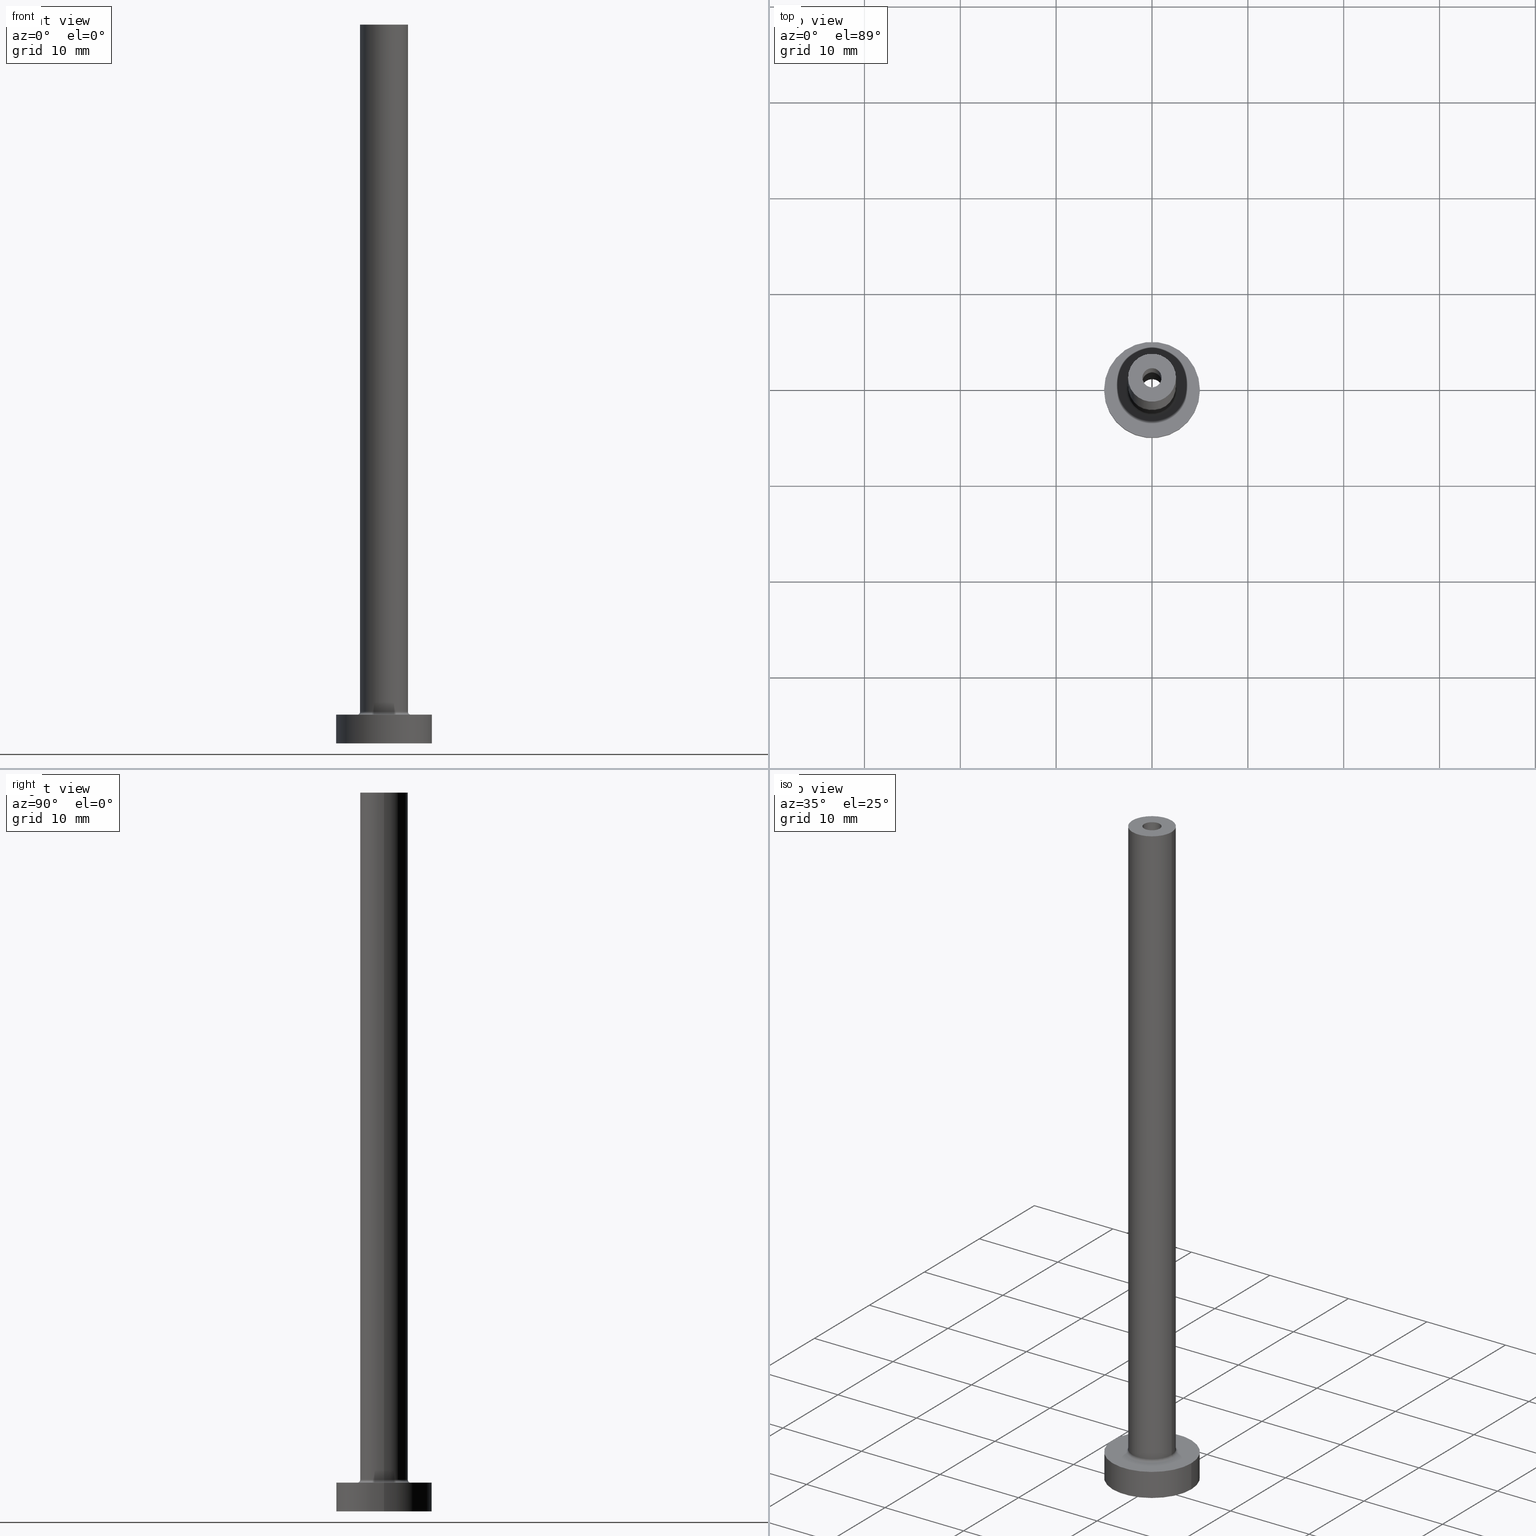
[diagram: canonical four-view strip — front | top / right | iso, engineering-drawing reading convention]
A machine part, canonical four-view strip (front | top / right | iso — engineering-drawing reading convention). The complete STEP part file that produces these views, byte-faithful:
ISO-10303-21;
HEADER;
FILE_DESCRIPTION (( 'STEP AP203' ),
    '1' );
FILE_NAME ('41a6.STEP',
    '2024-02-27T11:43:41',
    ( '' ),
    ( '' ),
    'SwSTEP 2.0',
    'SolidWorks 2019',
    '' );
FILE_SCHEMA (( 'CONFIG_CONTROL_DESIGN' ));
ENDSEC;

DATA;
#1 = CARTESIAN_POINT ( 'NONE',  ( 0.000000000000000000, 0.000000000000000000, 40.00000000000000711 ) ) ;
#2 = EDGE_CURVE ( 'NONE', #122, #406, #139, .T. ) ;
#3 = DIRECTION ( 'NONE',  ( 0.000000000000000000, 0.000000000000000000, -1.000000000000000000 ) ) ;
#4 = CARTESIAN_POINT ( 'NONE',  ( 0.000000000000000000, 0.000000000000000000, 3.000000000000000000 ) ) ;
#5 = PERSON_AND_ORGANIZATION ( #392, #262 ) ;
#6 = DIRECTION ( 'NONE',  ( 0.000000000000000000, 0.000000000000000000, 1.000000000000000000 ) ) ;
#7 = AXIS2_PLACEMENT_3D ( 'NONE', #326, #397, #112 ) ;
#8 = AXIS2_PLACEMENT_3D ( 'NONE', #276, #35, #387 ) ;
#9 =( NAMED_UNIT ( * ) SI_UNIT ( $, .STERADIAN. ) SOLID_ANGLE_UNIT ( ) );
#10 = EDGE_CURVE ( 'NONE', #302, #156, #314, .T. ) ;
#11 = CIRCLE ( 'NONE', #270, 1.149999999999999911 ) ;
#12 = DIRECTION ( 'NONE',  ( 0.000000000000000000, 0.000000000000000000, 1.000000000000000000 ) ) ;
#13 = CARTESIAN_POINT ( 'NONE',  ( 0.000000000000000000, 0.000000000000000000, 40.00000000000000711 ) ) ;
#14 = EDGE_LOOP ( 'NONE', ( #169, #26, #414, #412 ) ) ;
#15 = CC_DESIGN_PERSON_AND_ORGANIZATION_ASSIGNMENT ( #185, #118, ( #347 ) ) ;
#16 = APPROVAL_STATUS ( 'not_yet_approved' ) ;
#17 = MANIFOLD_SOLID_BREP ( 'Odebrat vysunut�m4', #339 ) ;
#18 = ORIENTED_EDGE ( 'NONE', *, *, #152, .T. ) ;
#19 = CARTESIAN_POINT ( 'NONE',  ( 2.799999999999999822, 0.000000000000000000, 3.299999999999997158 ) ) ;
#20 = AXIS2_PLACEMENT_3D ( 'NONE', #134, #29, #340 ) ;
#21 = DIRECTION ( 'NONE',  ( 1.000000000000000000, 0.000000000000000000, -0.000000000000000000 ) ) ;
#22 = EDGE_CURVE ( 'NONE', #388, #131, #11, .T. ) ;
#23 = CIRCLE ( 'NONE', #43, 1.000000000000000000 ) ;
#24 = ORIENTED_EDGE ( 'NONE', *, *, #178, .F. ) ;
#25 = DIRECTION ( 'NONE',  ( 1.000000000000000000, 0.000000000000000000, 0.000000000000000000 ) ) ;
#26 = ORIENTED_EDGE ( 'NONE', *, *, #178, .T. ) ;
#27 = DIRECTION ( 'NONE',  ( -0.000000000000000000, -0.000000000000000000, -1.000000000000000000 ) ) ;
#28 = ORIENTED_EDGE ( 'NONE', *, *, #418, .T. ) ;
#29 = DIRECTION ( 'NONE',  ( 0.000000000000000000, 0.000000000000000000, 1.000000000000000000 ) ) ;
#30 = CIRCLE ( 'NONE', #452, 1.149999999999999911 ) ;
#31 = DIRECTION ( 'NONE',  ( -1.000000000000000000, 0.000000000000000000, 0.000000000000000000 ) ) ;
#32 = ADVANCED_FACE ( 'NONE', ( #346 ), #278, .F. ) ;
#33 = FACE_OUTER_BOUND ( 'NONE', #267, .T. ) ;
#34 = LINE ( 'NONE', #384, #454 ) ;
#35 = DIRECTION ( 'NONE',  ( -0.000000000000000000, -0.000000000000000000, -1.000000000000000000 ) ) ;
#36 = VERTEX_POINT ( 'NONE', #423 ) ;
#37 = VERTEX_POINT ( 'NONE', #456 ) ;
#38 = LINE ( 'NONE', #176, #249 ) ;
#39 = DIRECTION ( 'NONE',  ( 1.000000000000000000, 0.000000000000000000, 0.000000000000000000 ) ) ;
#40 = CARTESIAN_POINT ( 'NONE',  ( 0.000000000000000000, 0.000000000000000000, 75.00000000000001421 ) ) ;
#41 = DIRECTION ( 'NONE',  ( -1.000000000000000000, 0.000000000000000000, 0.000000000000000000 ) ) ;
#42 = AXIS2_PLACEMENT_3D ( 'NONE', #342, #201, #25 ) ;
#43 = AXIS2_PLACEMENT_3D ( 'NONE', #146, #283, #207 ) ;
#44 = EDGE_CURVE ( 'NONE', #388, #441, #34, .T. ) ;
#45 = DIRECTION ( 'NONE',  ( 0.000000000000000000, 0.000000000000000000, 1.000000000000000000 ) ) ;
#46 = ADVANCED_FACE ( 'NONE', ( #67 ), #263, .F. ) ;
#47 = VECTOR ( 'NONE', #196, 1000.000000000000000 ) ;
#48 = SHAPE_DEFINITION_REPRESENTATION ( #91, #171 ) ;
#49 = CYLINDRICAL_SURFACE ( 'NONE', #88, 1.000000000000000000 ) ;
#50 = VERTEX_POINT ( 'NONE', #360 ) ;
#51 = CC_DESIGN_DATE_AND_TIME_ASSIGNMENT ( #182, #368, ( #347 ) ) ;
#52 = CARTESIAN_POINT ( 'NONE',  ( 2.500000000000000000, 3.061616997868383141E-16, 75.00000000000001421 ) ) ;
#53 = ORIENTED_EDGE ( 'NONE', *, *, #2, .T. ) ;
#54 = CIRCLE ( 'NONE', #115, 2.500000000000000000 ) ;
#55 = CARTESIAN_POINT ( 'NONE',  ( 1.000000000000000000, 1.224646799147353207E-16, 75.00000000000001421 ) ) ;
#56 = ORIENTED_EDGE ( 'NONE', *, *, #343, .F. ) ;
#57 = PLANE ( 'NONE',  #128 ) ;
#58 = ORIENTED_EDGE ( 'NONE', *, *, #104, .F. ) ;
#59 = FACE_OUTER_BOUND ( 'NONE', #344, .T. ) ;
#60 = EDGE_CURVE ( 'NONE', #37, #36, #153, .T. ) ;
#61 = DIRECTION ( 'NONE',  ( 0.000000000000000000, 0.000000000000000000, 1.000000000000000000 ) ) ;
#62 = CARTESIAN_POINT ( 'NONE',  ( 0.000000000000000000, 0.000000000000000000, 75.00000000000001421 ) ) ;
#63 = AXIS2_PLACEMENT_3D ( 'NONE', #255, #264, #369 ) ;
#64 = ORIENTED_EDGE ( 'NONE', *, *, #245, .F. ) ;
#65 = AXIS2_PLACEMENT_3D ( 'NONE', #413, #308, #455 ) ;
#66 = APPROVAL_STATUS ( 'not_yet_approved' ) ;
#67 = FACE_OUTER_BOUND ( 'NONE', #247, .T. ) ;
#68 = PRODUCT_DEFINITION ( 'NEZN�M�', '', #86, #277 ) ;
#69 = LINE ( 'NONE', #211, #362 ) ;
#70 = ORIENTED_EDGE ( 'NONE', *, *, #343, .T. ) ;
#71 = DIRECTION ( 'NONE',  ( 1.000000000000000000, 0.000000000000000000, 0.000000000000000000 ) ) ;
#72 = CARTESIAN_POINT ( 'NONE',  ( 0.000000000000000000, 0.000000000000000000, 0.000000000000000000 ) ) ;
#73 = CIRCLE ( 'NONE', #200, 5.000000000000000000 ) ;
#74 = LOCAL_TIME ( 12, 43, 41.00000000000000000, #332 ) ;
#75 = DIRECTION ( 'NONE',  ( -0.000000000000000000, -0.000000000000000000, -1.000000000000000000 ) ) ;
#76 = CARTESIAN_POINT ( 'NONE',  ( 0.000000000000000000, 0.000000000000000000, 75.00000000000001421 ) ) ;
#77 = CARTESIAN_POINT ( 'NONE',  ( 0.000000000000000000, 0.000000000000000000, 3.000000000000000000 ) ) ;
#78 = EDGE_CURVE ( 'NONE', #404, #349, #330, .T. ) ;
#79 = CARTESIAN_POINT ( 'NONE',  ( -1.149999999999999911, 0.000000000000000000, 0.000000000000000000 ) ) ;
#80 = CIRCLE ( 'NONE', #20, 2.500000000000000000 ) ;
#81 = CC_DESIGN_SECURITY_CLASSIFICATION ( #347, ( #86 ) ) ;
#82 = COORDINATED_UNIVERSAL_TIME_OFFSET ( 1, 0, .AHEAD. ) ;
#83 = ADVANCED_FACE ( 'NONE', ( #250 ), #49, .F. ) ;
#84 = APPLICATION_CONTEXT ( 'configuration controlled 3d designs of mechanical parts and assemblies' ) ;
#85 = APPROVAL_ROLE ( '' ) ;
#86 = PRODUCT_DEFINITION_FORMATION_WITH_SPECIFIED_SOURCE ( 'LIBOVOLN�', '', #372, .NOT_KNOWN. ) ;
#87 = LINE ( 'NONE', #224, #375 ) ;
#88 = AXIS2_PLACEMENT_3D ( 'NONE', #358, #179, #177 ) ;
#89 = ORIENTED_EDGE ( 'NONE', *, *, #227, .F. ) ;
#90 = PLANE ( 'NONE',  #355 ) ;
#91 = PRODUCT_DEFINITION_SHAPE ( 'NONE', 'NONE',  #68 ) ;
#92 = VERTEX_POINT ( 'NONE', #317 ) ;
#93 = CARTESIAN_POINT ( 'NONE',  ( 0.000000000000000000, 0.000000000000000000, 75.00000000000001421 ) ) ;
#94 = ORIENTED_EDGE ( 'NONE', *, *, #152, .F. ) ;
#95 = LINE ( 'NONE', #55, #366 ) ;
#96 =( GEOMETRIC_REPRESENTATION_CONTEXT ( 3 ) GLOBAL_UNCERTAINTY_ASSIGNED_CONTEXT ( ( #141 ) ) GLOBAL_UNIT_ASSIGNED_CONTEXT ( ( #318, #394, #9 ) ) REPRESENTATION_CONTEXT ( 'NONE', 'WORKASPACE' ) );
#97 = ORIENTED_EDGE ( 'NONE', *, *, #440, .T. ) ;
#98 = AXIS2_PLACEMENT_3D ( 'NONE', #307, #461, #31 ) ;
#99 = CARTESIAN_POINT ( 'NONE',  ( 0.000000000000000000, 0.000000000000000000, 43.25269119345811930 ) ) ;
#100 = ORIENTED_EDGE ( 'NONE', *, *, #2, .F. ) ;
#101 = DIRECTION ( 'NONE',  ( 1.000000000000000000, 0.000000000000000000, -0.000000000000000000 ) ) ;
#102 = ORIENTED_EDGE ( 'NONE', *, *, #195, .F. ) ;
#103 = ORIENTED_EDGE ( 'NONE', *, *, #377, .T. ) ;
#104 = EDGE_CURVE ( 'NONE', #131, #388, #444, .T. ) ;
#105 = MECHANICAL_CONTEXT ( 'NONE', #434, 'mechanical' ) ;
#106 = ORIENTED_EDGE ( 'NONE', *, *, #60, .T. ) ;
#107 = PERSON_AND_ORGANIZATION_ROLE ( 'creator' ) ;
#108 = ORIENTED_EDGE ( 'NONE', *, *, #311, .T. ) ;
#109 = PERSON_AND_ORGANIZATION ( #392, #262 ) ;
#110 = DIRECTION ( 'NONE',  ( 0.000000000000000000, 0.000000000000000000, 1.000000000000000000 ) ) ;
#111 = ADVANCED_FACE ( 'NONE', ( #285 ), #324, .T. ) ;
#112 = DIRECTION ( 'NONE',  ( 1.000000000000000000, 0.000000000000000000, 0.000000000000000000 ) ) ;
#113 = APPROVAL_DATE_TIME ( #254, #209 ) ;
#114 = DIRECTION ( 'NONE',  ( 1.000000000000000000, 0.000000000000000000, 0.000000000000000000 ) ) ;
#115 = AXIS2_PLACEMENT_3D ( 'NONE', #290, #433, #181 ) ;
#116 = EDGE_CURVE ( 'NONE', #293, #416, #73, .T. ) ;
#117 = PERSON_AND_ORGANIZATION ( #392, #262 ) ;
#118 = PERSON_AND_ORGANIZATION_ROLE ( 'classification_officer' ) ;
#119 = EDGE_LOOP ( 'NONE', ( #197, #295, #425, #443 ) ) ;
#120 = DIRECTION ( 'NONE',  ( 0.000000000000000000, 0.000000000000000000, -1.000000000000000000 ) ) ;
#121 = CIRCLE ( 'NONE', #241, 2.799999999999999822 ) ;
#122 = VERTEX_POINT ( 'NONE', #282 ) ;
#123 = DIRECTION ( 'NONE',  ( 1.000000000000000000, 0.000000000000000000, -0.000000000000000000 ) ) ;
#124 = ORIENTED_EDGE ( 'NONE', *, *, #458, .F. ) ;
#125 = PLANE ( 'NONE',  #162 ) ;
#126 = EDGE_LOOP ( 'NONE', ( #244, #299 ) ) ;
#127 = CIRCLE ( 'NONE', #436, 5.000000000000000000 ) ;
#128 = AXIS2_PLACEMENT_3D ( 'NONE', #62, #445, #123 ) ;
#129 = CYLINDRICAL_SURFACE ( 'NONE', #229, 5.000000000000000000 ) ;
#130 = APPROVAL_PERSON_ORGANIZATION ( #109, #288, #204 ) ;
#131 = VERTEX_POINT ( 'NONE', #184 ) ;
#132 = DIRECTION ( 'NONE',  ( 0.000000000000000000, 0.000000000000000000, -1.000000000000000000 ) ) ;
#133 = ORIENTED_EDGE ( 'NONE', *, *, #10, .F. ) ;
#134 = CARTESIAN_POINT ( 'NONE',  ( 0.000000000000000000, 0.000000000000000000, 75.00000000000001421 ) ) ;
#135 = EDGE_CURVE ( 'NONE', #136, #50, #361, .T. ) ;
#136 = VERTEX_POINT ( 'NONE', #319 ) ;
#137 = FACE_OUTER_BOUND ( 'NONE', #14, .T. ) ;
#138 = DIRECTION ( 'NONE',  ( -0.000000000000000000, -0.000000000000000000, -1.000000000000000000 ) ) ;
#139 = CIRCLE ( 'NONE', #402, 1.000000000000000000 ) ;
#140 = CYLINDRICAL_SURFACE ( 'NONE', #8, 5.000000000000000000 ) ;
#141 = UNCERTAINTY_MEASURE_WITH_UNIT (LENGTH_MEASURE( 1.000000000000000082E-05 ), #318, 'distance_accuracy_value', 'NONE');
#142 = ORIENTED_EDGE ( 'NONE', *, *, #458, .T. ) ;
#143 = DIRECTION ( 'NONE',  ( 1.000000000000000000, 0.000000000000000000, 0.000000000000000000 ) ) ;
#144 = DIRECTION ( 'NONE',  ( 1.000000000000000000, 0.000000000000000000, 0.000000000000000000 ) ) ;
#145 = EDGE_CURVE ( 'NONE', #50, #136, #54, .T. ) ;
#146 = CARTESIAN_POINT ( 'NONE',  ( 0.000000000000000000, 0.000000000000000000, 75.00000000000001421 ) ) ;
#147 = LINE ( 'NONE', #194, #47 ) ;
#148 = CC_DESIGN_APPROVAL ( #209, ( #347 ) ) ;
#149 = APPROVAL_STATUS ( 'not_yet_approved' ) ;
#150 = FACE_OUTER_BOUND ( 'NONE', #188, .T. ) ;
#151 = DIRECTION ( 'NONE',  ( 1.000000000000000000, 0.000000000000000000, 0.000000000000000000 ) ) ;
#152 = EDGE_CURVE ( 'NONE', #165, #92, #411, .T. ) ;
#153 = CIRCLE ( 'NONE', #286, 1.000000000000000000 ) ;
#154 = ORIENTED_EDGE ( 'NONE', *, *, #426, .T. ) ;
#155 = PERSON_AND_ORGANIZATION_ROLE ( 'creator' ) ;
#156 = VERTEX_POINT ( 'NONE', #257 ) ;
#157 = FACE_BOUND ( 'NONE', #126, .T. ) ;
#158 = ORIENTED_EDGE ( 'NONE', *, *, #104, .T. ) ;
#159 = VECTOR ( 'NONE', #27, 1000.000000000000000 ) ;
#160 = APPROVAL_PERSON_ORGANIZATION ( #117, #265, #190 ) ;
#161 = FACE_BOUND ( 'NONE', #167, .T. ) ;
#162 = AXIS2_PLACEMENT_3D ( 'NONE', #268, #336, #21 ) ;
#163 = ORIENTED_EDGE ( 'NONE', *, *, #116, .T. ) ;
#164 = DIRECTION ( 'NONE',  ( 0.000000000000000000, 0.000000000000000000, 1.000000000000000000 ) ) ;
#165 = VERTEX_POINT ( 'NONE', #401 ) ;
#166 = CARTESIAN_POINT ( 'NONE',  ( 2.799999999999999822, 0.000000000000000000, 2.999999999999998668 ) ) ;
#167 = EDGE_LOOP ( 'NONE', ( #370, #175 ) ) ;
#168 = DIRECTION ( 'NONE',  ( 1.000000000000000000, 0.000000000000000000, 0.000000000000000000 ) ) ;
#169 = ORIENTED_EDGE ( 'NONE', *, *, #359, .F. ) ;
#170 = DIRECTION ( 'NONE',  ( 0.000000000000000000, 0.000000000000000000, -1.000000000000000000 ) ) ;
#171 = ADVANCED_BREP_SHAPE_REPRESENTATION ( '41a6', ( #17, #298 ), #96 ) ;
#172 = ORIENTED_EDGE ( 'NONE', *, *, #377, .F. ) ;
#173 = EDGE_LOOP ( 'NONE', ( #94, #89 ) ) ;
#174 = DIRECTION ( 'NONE',  ( -0.000000000000000000, -0.000000000000000000, -1.000000000000000000 ) ) ;
#175 = ORIENTED_EDGE ( 'NONE', *, *, #391, .F. ) ;
#176 = CARTESIAN_POINT ( 'NONE',  ( -1.000000000000000000, 0.000000000000000000, 75.00000000000001421 ) ) ;
#177 = DIRECTION ( 'NONE',  ( -1.000000000000000000, 0.000000000000000000, 0.000000000000000000 ) ) ;
#178 = EDGE_CURVE ( 'NONE', #416, #92, #87, .T. ) ;
#179 = DIRECTION ( 'NONE',  ( 0.000000000000000000, 0.000000000000000000, -1.000000000000000000 ) ) ;
#180 = DIRECTION ( 'NONE',  ( -0.000000000000000000, -0.000000000000000000, -1.000000000000000000 ) ) ;
#181 = DIRECTION ( 'NONE',  ( 1.000000000000000000, 0.000000000000000000, 0.000000000000000000 ) ) ;
#182 = DATE_AND_TIME ( #365, #313 ) ;
#183 = ADVANCED_FACE ( 'NONE', ( #150 ), #451, .F. ) ;
#184 = CARTESIAN_POINT ( 'NONE',  ( -1.149999999999999911, 0.000000000000000000, 40.00000000000000711 ) ) ;
#185 = PERSON_AND_ORGANIZATION ( #392, #262 ) ;
#186 = LOCAL_TIME ( 12, 43, 41.00000000000000000, #218 ) ;
#187 = DATE_AND_TIME ( #258, #230 ) ;
#188 = EDGE_LOOP ( 'NONE', ( #172, #271, #222, #439 ) ) ;
#189 = PRODUCT_RELATED_PRODUCT_CATEGORY ( 'detail', '', ( #372 ) ) ;
#190 = APPROVAL_ROLE ( '' ) ;
#191 = DIRECTION ( 'NONE',  ( 1.000000000000000000, 0.000000000000000000, 0.000000000000000000 ) ) ;
#192 = DIRECTION ( 'NONE',  ( 1.000000000000000000, 0.000000000000000000, 0.000000000000000000 ) ) ;
#193 = VERTEX_POINT ( 'NONE', #79 ) ;
#194 = CARTESIAN_POINT ( 'NONE',  ( -1.149999999999999911, 0.000000000000000000, 43.25269119345811930 ) ) ;
#195 = EDGE_CURVE ( 'NONE', #136, #302, #291, .T. ) ;
#196 = DIRECTION ( 'NONE',  ( 0.000000000000000000, 0.000000000000000000, -1.000000000000000000 ) ) ;
#197 = ORIENTED_EDGE ( 'NONE', *, *, #44, .F. ) ;
#198 = LINE ( 'NONE', #225, #159 ) ;
#199 = ORIENTED_EDGE ( 'NONE', *, *, #311, .F. ) ;
#200 = AXIS2_PLACEMENT_3D ( 'NONE', #4, #333, #114 ) ;
#201 = DIRECTION ( 'NONE',  ( 0.000000000000000000, 0.000000000000000000, 1.000000000000000000 ) ) ;
#202 = DIRECTION ( 'NONE',  ( 1.000000000000000000, 0.000000000000000000, 0.000000000000000000 ) ) ;
#203 = CC_DESIGN_PERSON_AND_ORGANIZATION_ASSIGNMENT ( #219, #155, ( #86 ) ) ;
#204 = APPROVAL_ROLE ( '' ) ;
#205 = ORIENTED_EDGE ( 'NONE', *, *, #145, .F. ) ;
#206 = ORIENTED_EDGE ( 'NONE', *, *, #320, .F. ) ;
#207 = DIRECTION ( 'NONE',  ( 1.000000000000000000, 0.000000000000000000, 0.000000000000000000 ) ) ;
#208 = VECTOR ( 'NONE', #174, 1000.000000000000000 ) ;
#209 = APPROVAL ( #149, 'NEUR�EN�' ) ;
#210 = CARTESIAN_POINT ( 'NONE',  ( 0.000000000000000000, 0.000000000000000000, 3.299999999999997158 ) ) ;
#211 = CARTESIAN_POINT ( 'NONE',  ( 2.500000000000000000, 3.061616997868383141E-16, 75.00000000000001421 ) ) ;
#212 = DIRECTION ( 'NONE',  ( 1.000000000000000000, 0.000000000000000000, 0.000000000000000000 ) ) ;
#213 = DIRECTION ( 'NONE',  ( -0.000000000000000000, -0.000000000000000000, -1.000000000000000000 ) ) ;
#214 = DIRECTION ( 'NONE',  ( 1.000000000000000000, 0.000000000000000000, -0.000000000000000000 ) ) ;
#215 = CIRCLE ( 'NONE', #42, 1.000000000000000000 ) ;
#216 = DIRECTION ( 'NONE',  ( 1.000000000000000000, 0.000000000000000000, 0.000000000000000000 ) ) ;
#217 = CIRCLE ( 'NONE', #240, 1.149999999999999911 ) ;
#218 = COORDINATED_UNIVERSAL_TIME_OFFSET ( 1, 0, .AHEAD. ) ;
#219 = PERSON_AND_ORGANIZATION ( #392, #262 ) ;
#220 = ADVANCED_FACE ( 'NONE', ( #157, #395 ), #296, .T. ) ;
#221 = CIRCLE ( 'NONE', #421, 0.2999999999999999334 ) ;
#222 = ORIENTED_EDGE ( 'NONE', *, *, #195, .T. ) ;
#223 = AXIS2_PLACEMENT_3D ( 'NONE', #13, #45, #191 ) ;
#224 = CARTESIAN_POINT ( 'NONE',  ( 5.000000000000000000, 6.123233995736766282E-16, 3.000000000000000000 ) ) ;
#225 = CARTESIAN_POINT ( 'NONE',  ( -2.500000000000000000, 0.000000000000000000, 75.00000000000001421 ) ) ;
#226 = ORIENTED_EDGE ( 'NONE', *, *, #391, .T. ) ;
#227 = EDGE_CURVE ( 'NONE', #92, #165, #127, .T. ) ;
#228 = DIRECTION ( 'NONE',  ( -1.000000000000000000, 0.000000000000000000, 0.000000000000000000 ) ) ;
#229 = AXIS2_PLACEMENT_3D ( 'NONE', #306, #266, #272 ) ;
#230 = LOCAL_TIME ( 12, 43, 41.00000000000000000, #399 ) ;
#231 = DIRECTION ( 'NONE',  ( 1.224646799147353207E-16, 1.000000000000000000, -0.000000000000000000 ) ) ;
#232 = ORIENTED_EDGE ( 'NONE', *, *, #78, .T. ) ;
#233 = FACE_BOUND ( 'NONE', #354, .T. ) ;
#234 = DIRECTION ( 'NONE',  ( 0.000000000000000000, 0.000000000000000000, 1.000000000000000000 ) ) ;
#235 = FACE_BOUND ( 'NONE', #312, .T. ) ;
#236 = CC_DESIGN_PERSON_AND_ORGANIZATION_ASSIGNMENT ( #5, #281, ( #372 ) ) ;
#237 = EDGE_LOOP ( 'NONE', ( #58, #275 ) ) ;
#238 = AXIS2_PLACEMENT_3D ( 'NONE', #77, #428, #214 ) ;
#239 = DIRECTION ( 'NONE',  ( 0.000000000000000000, 0.000000000000000000, 1.000000000000000000 ) ) ;
#240 = AXIS2_PLACEMENT_3D ( 'NONE', #385, #75, #71 ) ;
#241 = AXIS2_PLACEMENT_3D ( 'NONE', #379, #301, #168 ) ;
#242 = DIRECTION ( 'NONE',  ( 1.000000000000000000, 0.000000000000000000, 0.000000000000000000 ) ) ;
#243 = CARTESIAN_POINT ( 'NONE',  ( -2.500000000000000000, 0.000000000000000000, 75.00000000000001421 ) ) ;
#244 = ORIENTED_EDGE ( 'NONE', *, *, #10, .T. ) ;
#245 = EDGE_CURVE ( 'NONE', #131, #193, #147, .T. ) ;
#246 = CARTESIAN_POINT ( 'NONE',  ( 1.149999999999999911, 1.408343819019456028E-16, 40.00000000000000711 ) ) ;
#247 = EDGE_LOOP ( 'NONE', ( #205, #103, #133, #102 ) ) ;
#248 = CARTESIAN_POINT ( 'NONE',  ( -5.000000000000000000, 0.000000000000000000, 3.000000000000000000 ) ) ;
#249 = VECTOR ( 'NONE', #3, 1000.000000000000000 ) ;
#250 = FACE_OUTER_BOUND ( 'NONE', #386, .T. ) ;
#251 = AXIS2_PLACEMENT_3D ( 'NONE', #76, #363, #216 ) ;
#252 = CARTESIAN_POINT ( 'NONE',  ( 5.000000000000000000, 6.123233995736766282E-16, 3.000000000000000000 ) ) ;
#253 = CARTESIAN_POINT ( 'NONE',  ( 0.000000000000000000, 0.000000000000000000, 0.000000000000000000 ) ) ;
#254 = DATE_AND_TIME ( #396, #186 ) ;
#255 = CARTESIAN_POINT ( 'NONE',  ( 0.000000000000000000, 0.000000000000000000, 3.299999999999997158 ) ) ;
#256 = PERSON_AND_ORGANIZATION ( #392, #262 ) ;
#257 = CARTESIAN_POINT ( 'NONE',  ( -2.799999999999999822, 3.429011037612589276E-16, 2.999999999999998668 ) ) ;
#258 = CALENDAR_DATE ( 2024, 27, 2 ) ;
#259 = ADVANCED_FACE ( 'NONE', ( #376 ), #129, .T. ) ;
#260 = ORIENTED_EDGE ( 'NONE', *, *, #78, .F. ) ;
#261 = AXIS2_PLACEMENT_3D ( 'NONE', #40, #432, #41 ) ;
#262 = ORGANIZATION ( 'NEUR�EN�', 'NEUR�EN�', '' ) ;
#263 = TOROIDAL_SURFACE ( 'NONE', #357, 2.799999999999999822, 0.2999999999999999889 ) ;
#264 = DIRECTION ( 'NONE',  ( 0.000000000000000000, 0.000000000000000000, 1.000000000000000000 ) ) ;
#265 = APPROVAL ( #16, 'NEUR�EN�' ) ;
#266 = DIRECTION ( 'NONE',  ( -0.000000000000000000, -0.000000000000000000, -1.000000000000000000 ) ) ;
#267 = EDGE_LOOP ( 'NONE', ( #106, #341, #100, #124 ) ) ;
#268 = CARTESIAN_POINT ( 'NONE',  ( 0.000000000000000000, 0.000000000000000000, 40.00000000000000711 ) ) ;
#269 = DIRECTION ( 'NONE',  ( -1.000000000000000000, 1.224646799147353207E-16, 0.000000000000000000 ) ) ;
#270 = AXIS2_PLACEMENT_3D ( 'NONE', #1, #61, #202 ) ;
#271 = ORIENTED_EDGE ( 'NONE', *, *, #135, .F. ) ;
#272 = DIRECTION ( 'NONE',  ( -1.000000000000000000, 0.000000000000000000, 0.000000000000000000 ) ) ;
#273 = ADVANCED_FACE ( 'NONE', ( #161, #59 ), #57, .T. ) ;
#274 = DIRECTION ( 'NONE',  ( 0.000000000000000000, 0.000000000000000000, -1.000000000000000000 ) ) ;
#275 = ORIENTED_EDGE ( 'NONE', *, *, #22, .F. ) ;
#276 = CARTESIAN_POINT ( 'NONE',  ( 0.000000000000000000, 0.000000000000000000, 3.000000000000000000 ) ) ;
#277 = DESIGN_CONTEXT ( 'detailed design', #84, 'design' ) ;
#278 = CYLINDRICAL_SURFACE ( 'NONE', #98, 1.149999999999999911 ) ;
#279 = APPROVAL_DATE_TIME ( #460, #288 ) ;
#280 = ORIENTED_EDGE ( 'NONE', *, *, #116, .F. ) ;
#281 = PERSON_AND_ORGANIZATION_ROLE ( 'design_owner' ) ;
#282 = CARTESIAN_POINT ( 'NONE',  ( -1.000000000000000000, 0.000000000000000000, 40.00000000000000711 ) ) ;
#283 = DIRECTION ( 'NONE',  ( 0.000000000000000000, 0.000000000000000000, 1.000000000000000000 ) ) ;
#284 = CC_DESIGN_APPROVAL ( #288, ( #68 ) ) ;
#285 = FACE_OUTER_BOUND ( 'NONE', #459, .T. ) ;
#286 = AXIS2_PLACEMENT_3D ( 'NONE', #430, #12, #151 ) ;
#287 = DATE_AND_TIME ( #438, #74 ) ;
#288 = APPROVAL ( #66, 'NEUR�EN�' ) ;
#289 = DIRECTION ( 'NONE',  ( -0.000000000000000000, -0.000000000000000000, -1.000000000000000000 ) ) ;
#290 = CARTESIAN_POINT ( 'NONE',  ( 0.000000000000000000, 0.000000000000000000, 3.299999999999997158 ) ) ;
#291 = CIRCLE ( 'NONE', #322, 0.2999999999999999334 ) ;
#292 = ADVANCED_FACE ( 'NONE', ( #233, #408 ), #90, .F. ) ;
#293 = VERTEX_POINT ( 'NONE', #457 ) ;
#294 = PERSON_AND_ORGANIZATION_ROLE ( 'design_supplier' ) ;
#295 = ORIENTED_EDGE ( 'NONE', *, *, #22, .T. ) ;
#296 = PLANE ( 'NONE',  #238 ) ;
#297 = CC_DESIGN_PERSON_AND_ORGANIZATION_ASSIGNMENT ( #256, #294, ( #86 ) ) ;
#298 = AXIS2_PLACEMENT_3D ( 'NONE', #353, #239, #143 ) ;
#299 = ORIENTED_EDGE ( 'NONE', *, *, #364, .T. ) ;
#300 = CYLINDRICAL_SURFACE ( 'NONE', #65, 2.500000000000000000 ) ;
#301 = DIRECTION ( 'NONE',  ( -0.000000000000000000, -0.000000000000000000, -1.000000000000000000 ) ) ;
#302 = VERTEX_POINT ( 'NONE', #166 ) ;
#303 = FACE_OUTER_BOUND ( 'NONE', #329, .T. ) ;
#304 = ORIENTED_EDGE ( 'NONE', *, *, #359, .T. ) ;
#305 = EDGE_CURVE ( 'NONE', #36, #406, #95, .T. ) ;
#306 = CARTESIAN_POINT ( 'NONE',  ( 0.000000000000000000, 0.000000000000000000, 3.000000000000000000 ) ) ;
#307 = CARTESIAN_POINT ( 'NONE',  ( 0.000000000000000000, 0.000000000000000000, 43.25269119345811930 ) ) ;
#308 = DIRECTION ( 'NONE',  ( -0.000000000000000000, -0.000000000000000000, -1.000000000000000000 ) ) ;
#309 = CARTESIAN_POINT ( 'NONE',  ( 0.000000000000000000, 0.000000000000000000, 3.000000000000000000 ) ) ;
#310 = CALENDAR_DATE ( 2024, 27, 2 ) ;
#311 = EDGE_CURVE ( 'NONE', #406, #122, #215, .T. ) ;
#312 = EDGE_LOOP ( 'NONE', ( #53, #108 ) ) ;
#313 = LOCAL_TIME ( 12, 43, 41.00000000000000000, #82 ) ;
#314 = CIRCLE ( 'NONE', #325, 2.799999999999999822 ) ;
#315 = CARTESIAN_POINT ( 'NONE',  ( 0.000000000000000000, 0.000000000000000000, 40.00000000000000711 ) ) ;
#316 = LINE ( 'NONE', #248, #208 ) ;
#317 = CARTESIAN_POINT ( 'NONE',  ( 5.000000000000000000, 6.123233995736766282E-16, 0.000000000000000000 ) ) ;
#318 =( LENGTH_UNIT ( ) NAMED_UNIT ( * ) SI_UNIT ( .MILLI., .METRE. ) );
#319 = CARTESIAN_POINT ( 'NONE',  ( 2.500000000000000000, 3.061616997868383141E-16, 3.299999999999997158 ) ) ;
#320 = EDGE_CURVE ( 'NONE', #404, #50, #198, .T. ) ;
#321 = CARTESIAN_POINT ( 'NONE',  ( 1.149999999999999911, 1.408343819019456028E-16, 0.000000000000000000 ) ) ;
#322 = AXIS2_PLACEMENT_3D ( 'NONE', #19, #442, #120 ) ;
#323 = AXIS2_PLACEMENT_3D ( 'NONE', #407, #164, #192 ) ;
#324 = CYLINDRICAL_SURFACE ( 'NONE', #261, 2.500000000000000000 ) ;
#325 = AXIS2_PLACEMENT_3D ( 'NONE', #309, #138, #242 ) ;
#326 = CARTESIAN_POINT ( 'NONE',  ( 0.000000000000000000, 0.000000000000000000, 3.299999999999997158 ) ) ;
#327 = ADVANCED_FACE ( 'NONE', ( #33 ), #373, .F. ) ;
#328 = AXIS2_PLACEMENT_3D ( 'NONE', #253, #6, #144 ) ;
#329 = EDGE_LOOP ( 'NONE', ( #158, #338, #97, #64 ) ) ;
#330 = CIRCLE ( 'NONE', #251, 2.500000000000000000 ) ;
#331 = SECURITY_CLASSIFICATION_LEVEL ( 'unclassified' ) ;
#332 = COORDINATED_UNIVERSAL_TIME_OFFSET ( 1, 0, .AHEAD. ) ;
#333 = DIRECTION ( 'NONE',  ( 0.000000000000000000, 0.000000000000000000, 1.000000000000000000 ) ) ;
#334 = ORIENTED_EDGE ( 'NONE', *, *, #145, .T. ) ;
#335 = ADVANCED_FACE ( 'NONE', ( #303 ), #345, .F. ) ;
#336 = DIRECTION ( 'NONE',  ( 0.000000000000000000, 0.000000000000000000, 1.000000000000000000 ) ) ;
#337 = CC_DESIGN_APPROVAL ( #265, ( #86 ) ) ;
#338 = ORIENTED_EDGE ( 'NONE', *, *, #44, .T. ) ;
#339 = CLOSED_SHELL ( 'NONE', ( #327, #335, #46, #350, #398, #259, #220, #292, #111, #273, #183, #32, #371, #83 ) ) ;
#340 = DIRECTION ( 'NONE',  ( 1.000000000000000000, 0.000000000000000000, 0.000000000000000000 ) ) ;
#341 = ORIENTED_EDGE ( 'NONE', *, *, #305, .T. ) ;
#342 = CARTESIAN_POINT ( 'NONE',  ( 0.000000000000000000, 0.000000000000000000, 40.00000000000000711 ) ) ;
#343 = EDGE_CURVE ( 'NONE', #349, #404, #80, .T. ) ;
#344 = EDGE_LOOP ( 'NONE', ( #232, #70 ) ) ;
#345 = CYLINDRICAL_SURFACE ( 'NONE', #429, 1.149999999999999911 ) ;
#346 = FACE_OUTER_BOUND ( 'NONE', #119, .T. ) ;
#347 = SECURITY_CLASSIFICATION ( '', '', #331 ) ;
#348 = DIRECTION ( 'NONE',  ( 0.000000000000000000, 0.000000000000000000, -1.000000000000000000 ) ) ;
#349 = VERTEX_POINT ( 'NONE', #52 ) ;
#350 = ADVANCED_FACE ( 'NONE', ( #374 ), #300, .T. ) ;
#351 = COORDINATED_UNIVERSAL_TIME_OFFSET ( 1, 0, .AHEAD. ) ;
#352 = EDGE_LOOP ( 'NONE', ( #24, #280, #28, #18 ) ) ;
#353 = CARTESIAN_POINT ( 'NONE',  ( 0.000000000000000000, 0.000000000000000000, 0.000000000000000000 ) ) ;
#354 = EDGE_LOOP ( 'NONE', ( #449, #378 ) ) ;
#355 = AXIS2_PLACEMENT_3D ( 'NONE', #415, #381, #101 ) ;
#356 = CARTESIAN_POINT ( 'NONE',  ( 0.000000000000000000, 0.000000000000000000, 0.000000000000000000 ) ) ;
#357 = AXIS2_PLACEMENT_3D ( 'NONE', #210, #110, #39 ) ;
#358 = CARTESIAN_POINT ( 'NONE',  ( 0.000000000000000000, 0.000000000000000000, 75.00000000000001421 ) ) ;
#359 = EDGE_CURVE ( 'NONE', #416, #293, #400, .T. ) ;
#360 = CARTESIAN_POINT ( 'NONE',  ( -2.500000000000000000, 0.000000000000000000, 3.299999999999997158 ) ) ;
#361 = CIRCLE ( 'NONE', #7, 2.500000000000000000 ) ;
#362 = VECTOR ( 'NONE', #180, 1000.000000000000000 ) ;
#363 = DIRECTION ( 'NONE',  ( 0.000000000000000000, 0.000000000000000000, 1.000000000000000000 ) ) ;
#364 = EDGE_CURVE ( 'NONE', #156, #302, #121, .T. ) ;
#365 = CALENDAR_DATE ( 2024, 27, 2 ) ;
#366 = VECTOR ( 'NONE', #348, 1000.000000000000000 ) ;
#367 = EDGE_LOOP ( 'NONE', ( #56, #154, #382, #206 ) ) ;
#368 = DATE_TIME_ROLE ( 'classification_date' ) ;
#369 = DIRECTION ( 'NONE',  ( 1.000000000000000000, 0.000000000000000000, 0.000000000000000000 ) ) ;
#370 = ORIENTED_EDGE ( 'NONE', *, *, #60, .F. ) ;
#371 = ADVANCED_FACE ( 'NONE', ( #235, #448 ), #125, .F. ) ;
#372 = PRODUCT ( '41a6', '41a6', '', ( #105 ) ) ;
#373 = CYLINDRICAL_SURFACE ( 'NONE', #420, 1.000000000000000000 ) ;
#374 = FACE_OUTER_BOUND ( 'NONE', #367, .T. ) ;
#375 = VECTOR ( 'NONE', #289, 1000.000000000000000 ) ;
#376 = FACE_OUTER_BOUND ( 'NONE', #352, .T. ) ;
#377 = EDGE_CURVE ( 'NONE', #50, #156, #221, .T. ) ;
#378 = ORIENTED_EDGE ( 'NONE', *, *, #440, .F. ) ;
#379 = CARTESIAN_POINT ( 'NONE',  ( 0.000000000000000000, 0.000000000000000000, 3.000000000000000000 ) ) ;
#380 = DIRECTION ( 'NONE',  ( 1.000000000000000000, 0.000000000000000000, 0.000000000000000000 ) ) ;
#381 = DIRECTION ( 'NONE',  ( 0.000000000000000000, 0.000000000000000000, 1.000000000000000000 ) ) ;
#382 = ORIENTED_EDGE ( 'NONE', *, *, #135, .T. ) ;
#383 = CC_DESIGN_PERSON_AND_ORGANIZATION_ASSIGNMENT ( #424, #107, ( #68 ) ) ;
#384 = CARTESIAN_POINT ( 'NONE',  ( 1.149999999999999911, 1.408343819019456028E-16, 43.25269119345811930 ) ) ;
#385 = CARTESIAN_POINT ( 'NONE',  ( 0.000000000000000000, 0.000000000000000000, 0.000000000000000000 ) ) ;
#386 = EDGE_LOOP ( 'NONE', ( #419, #226, #142, #199 ) ) ;
#387 = DIRECTION ( 'NONE',  ( -1.000000000000000000, 0.000000000000000000, 0.000000000000000000 ) ) ;
#388 = VERTEX_POINT ( 'NONE', #246 ) ;
#389 = LOCAL_TIME ( 12, 43, 41.00000000000000000, #351 ) ;
#390 = CARTESIAN_POINT ( 'NONE',  ( 1.000000000000000000, 1.224646799147353207E-16, 40.00000000000000711 ) ) ;
#391 = EDGE_CURVE ( 'NONE', #36, #37, #23, .T. ) ;
#392 = PERSON ( 'NEUR�EN�', 'NEUR�EN�', 'NEUR�EN�', ('NEUR�EN�'), ('NEUR�EN�'), ('NEUR�EN�') ) ;
#393 = DIRECTION ( 'NONE',  ( 0.000000000000000000, 0.000000000000000000, 1.000000000000000000 ) ) ;
#394 =( NAMED_UNIT ( * ) PLANE_ANGLE_UNIT ( ) SI_UNIT ( $, .RADIAN. ) );
#395 = FACE_OUTER_BOUND ( 'NONE', #409, .T. ) ;
#396 = CALENDAR_DATE ( 2024, 27, 2 ) ;
#397 = DIRECTION ( 'NONE',  ( 0.000000000000000000, 0.000000000000000000, 1.000000000000000000 ) ) ;
#398 = ADVANCED_FACE ( 'NONE', ( #137 ), #140, .T. ) ;
#399 = COORDINATED_UNIVERSAL_TIME_OFFSET ( 1, 0, .AHEAD. ) ;
#400 = CIRCLE ( 'NONE', #323, 5.000000000000000000 ) ;
#401 = CARTESIAN_POINT ( 'NONE',  ( -5.000000000000000000, 0.000000000000000000, 0.000000000000000000 ) ) ;
#402 = AXIS2_PLACEMENT_3D ( 'NONE', #315, #234, #380 ) ;
#403 = PERSON_AND_ORGANIZATION ( #392, #262 ) ;
#404 = VERTEX_POINT ( 'NONE', #243 ) ;
#405 = EDGE_CURVE ( 'NONE', #193, #441, #30, .T. ) ;
#406 = VERTEX_POINT ( 'NONE', #390 ) ;
#407 = CARTESIAN_POINT ( 'NONE',  ( 0.000000000000000000, 0.000000000000000000, 3.000000000000000000 ) ) ;
#408 = FACE_OUTER_BOUND ( 'NONE', #173, .T. ) ;
#409 = EDGE_LOOP ( 'NONE', ( #163, #304 ) ) ;
#410 = CARTESIAN_POINT ( 'NONE',  ( -2.799999999999999822, 3.429011037612588783E-16, 3.299999999999997158 ) ) ;
#411 = CIRCLE ( 'NONE', #328, 5.000000000000000000 ) ;
#412 = ORIENTED_EDGE ( 'NONE', *, *, #418, .F. ) ;
#413 = CARTESIAN_POINT ( 'NONE',  ( 0.000000000000000000, 0.000000000000000000, 75.00000000000001421 ) ) ;
#414 = ORIENTED_EDGE ( 'NONE', *, *, #227, .T. ) ;
#415 = CARTESIAN_POINT ( 'NONE',  ( 0.000000000000000000, 0.000000000000000000, 0.000000000000000000 ) ) ;
#416 = VERTEX_POINT ( 'NONE', #252 ) ;
#417 = DIRECTION ( 'NONE',  ( 1.000000000000000000, 0.000000000000000000, 0.000000000000000000 ) ) ;
#418 = EDGE_CURVE ( 'NONE', #293, #165, #316, .T. ) ;
#419 = ORIENTED_EDGE ( 'NONE', *, *, #305, .F. ) ;
#420 = AXIS2_PLACEMENT_3D ( 'NONE', #93, #132, #450 ) ;
#421 = AXIS2_PLACEMENT_3D ( 'NONE', #410, #231, #269 ) ;
#422 = APPLICATION_PROTOCOL_DEFINITION ( 'international standard', 'config_control_design', 1994, #434 ) ;
#423 = CARTESIAN_POINT ( 'NONE',  ( 1.000000000000000000, 1.224646799147353207E-16, 75.00000000000001421 ) ) ;
#424 = PERSON_AND_ORGANIZATION ( #392, #262 ) ;
#425 = ORIENTED_EDGE ( 'NONE', *, *, #245, .T. ) ;
#426 = EDGE_CURVE ( 'NONE', #349, #136, #69, .T. ) ;
#427 = APPLICATION_PROTOCOL_DEFINITION ( 'international standard', 'config_control_design', 1994, #84 ) ;
#428 = DIRECTION ( 'NONE',  ( 0.000000000000000000, 0.000000000000000000, 1.000000000000000000 ) ) ;
#429 = AXIS2_PLACEMENT_3D ( 'NONE', #99, #170, #228 ) ;
#430 = CARTESIAN_POINT ( 'NONE',  ( 0.000000000000000000, 0.000000000000000000, 75.00000000000001421 ) ) ;
#431 = DATE_TIME_ROLE ( 'creation_date' ) ;
#432 = DIRECTION ( 'NONE',  ( -0.000000000000000000, -0.000000000000000000, -1.000000000000000000 ) ) ;
#433 = DIRECTION ( 'NONE',  ( 0.000000000000000000, 0.000000000000000000, 1.000000000000000000 ) ) ;
#434 = APPLICATION_CONTEXT ( 'configuration controlled 3d designs of mechanical parts and assemblies' ) ;
#435 = APPROVAL_DATE_TIME ( #187, #265 ) ;
#436 = AXIS2_PLACEMENT_3D ( 'NONE', #72, #393, #212 ) ;
#437 = APPROVAL_PERSON_ORGANIZATION ( #403, #209, #85 ) ;
#438 = CALENDAR_DATE ( 2024, 27, 2 ) ;
#439 = ORIENTED_EDGE ( 'NONE', *, *, #364, .F. ) ;
#440 = EDGE_CURVE ( 'NONE', #441, #193, #217, .T. ) ;
#441 = VERTEX_POINT ( 'NONE', #321 ) ;
#442 = DIRECTION ( 'NONE',  ( 0.000000000000000000, -1.000000000000000000, 0.000000000000000000 ) ) ;
#443 = ORIENTED_EDGE ( 'NONE', *, *, #405, .T. ) ;
#444 = CIRCLE ( 'NONE', #223, 1.149999999999999911 ) ;
#445 = DIRECTION ( 'NONE',  ( 0.000000000000000000, 0.000000000000000000, 1.000000000000000000 ) ) ;
#446 = CC_DESIGN_DATE_AND_TIME_ASSIGNMENT ( #287, #431, ( #68 ) ) ;
#447 = ORIENTED_EDGE ( 'NONE', *, *, #320, .T. ) ;
#448 = FACE_OUTER_BOUND ( 'NONE', #237, .T. ) ;
#449 = ORIENTED_EDGE ( 'NONE', *, *, #405, .F. ) ;
#450 = DIRECTION ( 'NONE',  ( -1.000000000000000000, 0.000000000000000000, 0.000000000000000000 ) ) ;
#451 = TOROIDAL_SURFACE ( 'NONE', #63, 2.799999999999999822, 0.2999999999999999889 ) ;
#452 = AXIS2_PLACEMENT_3D ( 'NONE', #356, #213, #417 ) ;
#453 = ORIENTED_EDGE ( 'NONE', *, *, #426, .F. ) ;
#454 = VECTOR ( 'NONE', #274, 1000.000000000000000 ) ;
#455 = DIRECTION ( 'NONE',  ( -1.000000000000000000, 0.000000000000000000, 0.000000000000000000 ) ) ;
#456 = CARTESIAN_POINT ( 'NONE',  ( -1.000000000000000000, 0.000000000000000000, 75.00000000000001421 ) ) ;
#457 = CARTESIAN_POINT ( 'NONE',  ( -5.000000000000000000, 0.000000000000000000, 3.000000000000000000 ) ) ;
#458 = EDGE_CURVE ( 'NONE', #37, #122, #38, .T. ) ;
#459 = EDGE_LOOP ( 'NONE', ( #453, #260, #447, #334 ) ) ;
#460 = DATE_AND_TIME ( #310, #389 ) ;
#461 = DIRECTION ( 'NONE',  ( 0.000000000000000000, 0.000000000000000000, -1.000000000000000000 ) ) ;
ENDSEC;
END-ISO-10303-21;
